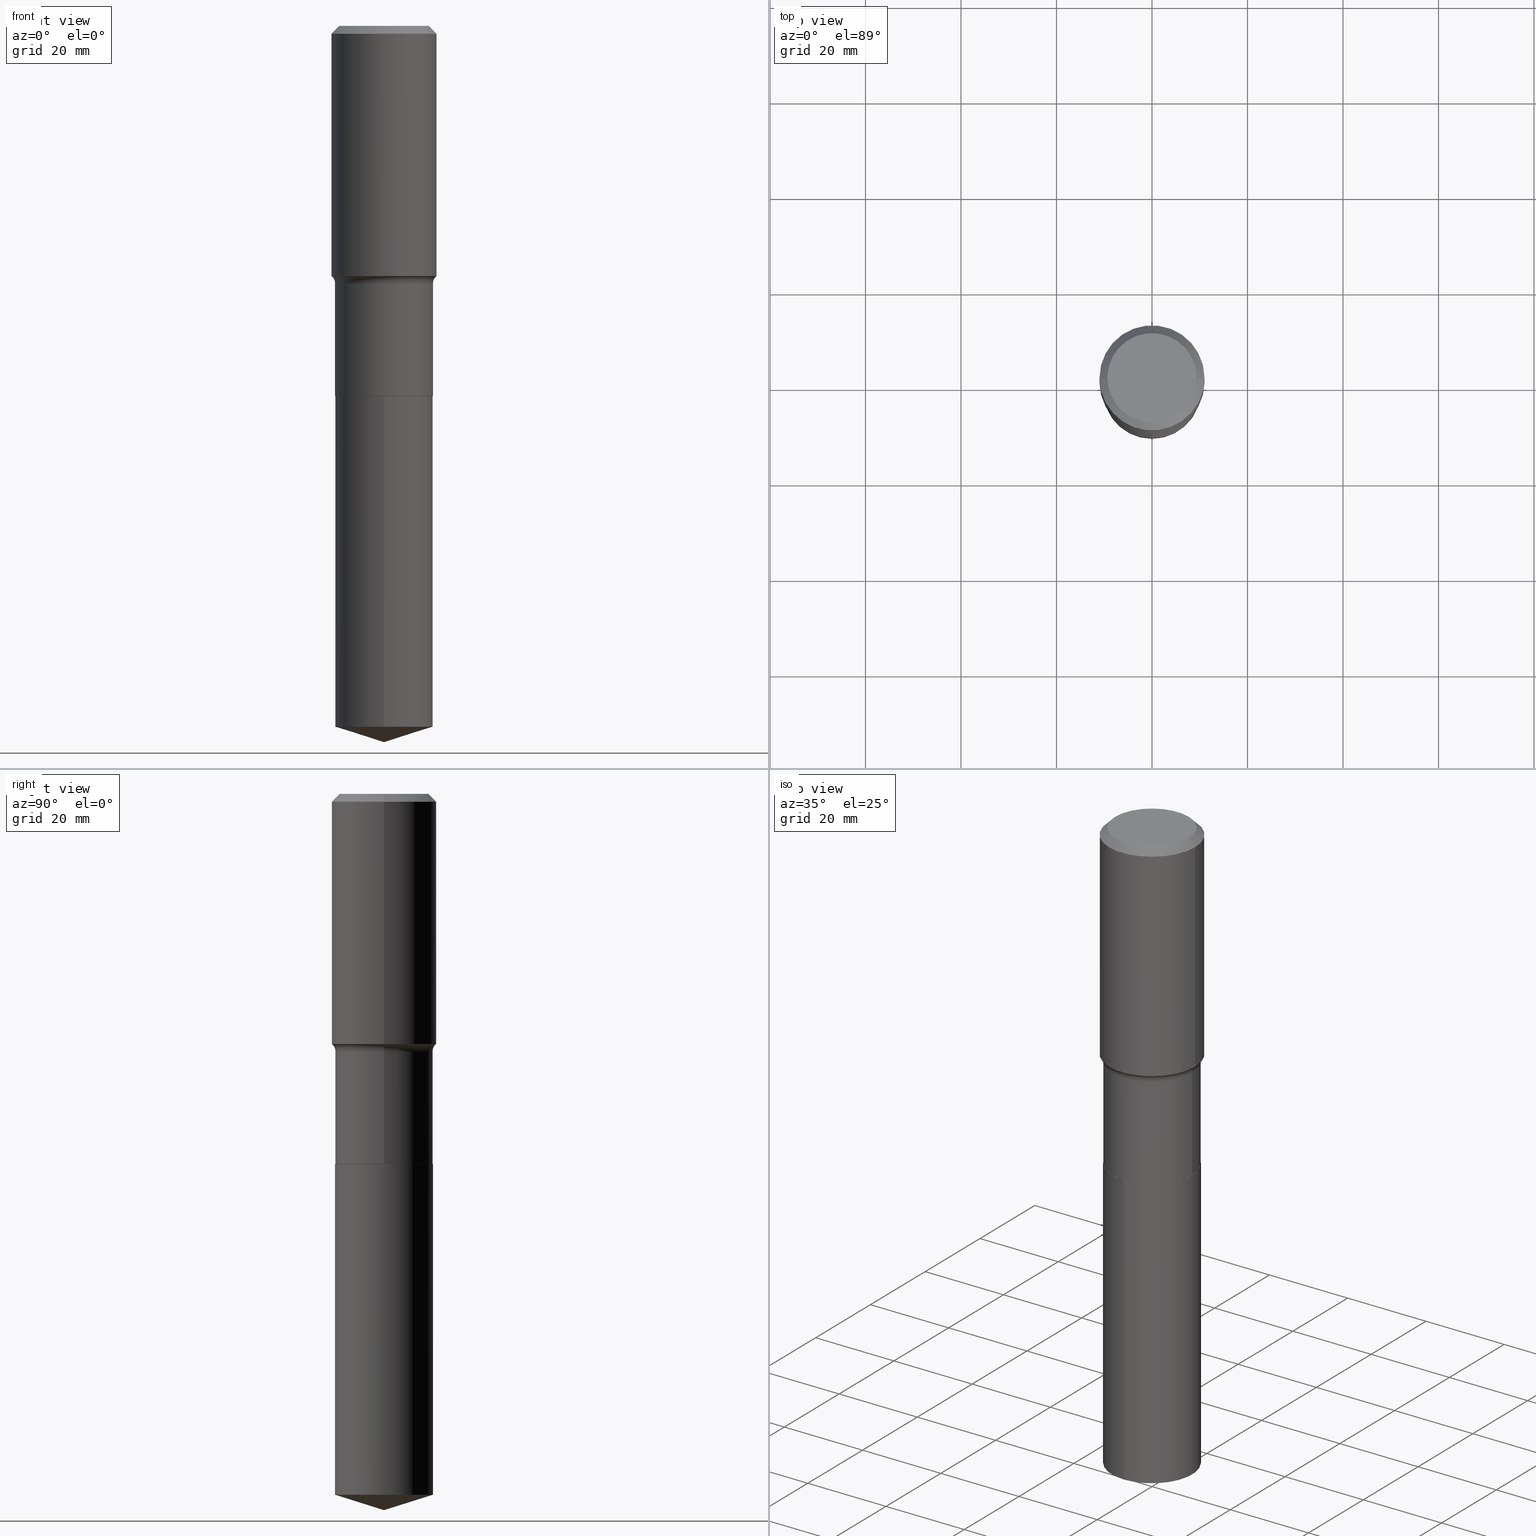
[diagram: canonical four-view strip — front | top / right | iso, engineering-drawing reading convention]
A machine part, canonical four-view strip (front | top / right | iso — engineering-drawing reading convention). The complete STEP part file that produces these views, byte-faithful:
ISO-10303-21;
HEADER;
FILE_DESCRIPTION (( 'STEP AP203' ),
    '1' );
FILE_NAME ('64513.STEP',
    '2024-04-19T15:43:19',
    ( '' ),
    ( '' ),
    'SwSTEP 2.0',
    'SolidWorks 2023',
    '' );
FILE_SCHEMA (( 'CONFIG_CONTROL_DESIGN' ));
ENDSEC;

DATA;
#1 = EDGE_LOOP ( 'NONE', ( #347, #416 ) ) ;
#2 = CYLINDRICAL_SURFACE ( 'NONE', #410, 0.4035499999999999088 ) ;
#3 = ORIENTED_EDGE ( 'NONE', *, *, #302, .T. ) ;
#4 = CARTESIAN_POINT ( 'NONE',  ( 0.4330500000000000460, -3.023971987572038133E-15, 2.111628352758430314E-29 ) ) ;
#5 = ORIENTED_EDGE ( 'NONE', *, *, #426, .T. ) ;
#6 = CYLINDRICAL_SURFACE ( 'NONE', #259, 0.4035499999999999088 ) ;
#7 = AXIS2_PLACEMENT_3D ( 'NONE', #59, #179, #167 ) ;
#8 = ADVANCED_FACE ( 'NONE', ( #249 ), #12, .T. ) ;
#9 = ORIENTED_EDGE ( 'NONE', *, *, #298, .F. ) ;
#10 = DIRECTION ( 'NONE',  ( -1.000000000000000000, 7.105427357601001859E-15, 0.000000000000000000 ) ) ;
#11 = PERSON_AND_ORGANIZATION ( #276, #54 ) ;
#12 = CYLINDRICAL_SURFACE ( 'NONE', #182, 0.4035500000000001308 ) ;
#13 = CYLINDRICAL_SURFACE ( 'NONE', #7, 0.4330500000000000460 ) ;
#14 = DIRECTION ( 'NONE',  ( -2.445468806185136597E-29, 3.491481338843145583E-15, 1.000000000000000000 ) ) ;
#15 = CARTESIAN_POINT ( 'NONE',  ( 0.3680924999999999336, -2.861517208123791872E-15, 3.893152174491335652E-17 ) ) ;
#16 = VECTOR ( 'NONE', #362, 39.37007874015748143 ) ;
#17 = VECTOR ( 'NONE', #295, 39.37007874015748143 ) ;
#18 = DATE_AND_TIME ( #85, #393 ) ;
#19 = DIRECTION ( 'NONE',  ( 2.445468806185136597E-29, -3.491481338843145583E-15, -1.000000000000000000 ) ) ;
#20 = LOCAL_TIME ( 11, 43, 19.00000000000000000, #318 ) ;
#21 = DIRECTION ( 'NONE',  ( 0.7071067811866441621, -2.468850131083269169E-15, 0.7071067811864508723 ) ) ;
#22 = DATE_AND_TIME ( #92, #191 ) ;
#23 = DIRECTION ( 'NONE',  ( -2.445468806185136597E-29, 3.491481338843145583E-15, 1.000000000000000000 ) ) ;
#24 = DIRECTION ( 'NONE',  ( 2.445468806185136597E-29, -3.491481338843145583E-15, -1.000000000000000000 ) ) ;
#25 = CARTESIAN_POINT ( 'NONE',  ( 0.4035500000000002419, -1.346943670898907832E-14, -3.050699999999999967 ) ) ;
#26 = AXIS2_PLACEMENT_3D ( 'NONE', #49, #14, #443 ) ;
#27 = CIRCLE ( 'NONE', #213, 0.07800000000000002764 ) ;
#28 = DIRECTION ( 'NONE',  ( 0.7071067811865450192, -7.319954787623246579E-15, -0.7071067811865500152 ) ) ;
#29 = APPLICATION_CONTEXT ( 'configuration controlled 3d designs of mechanical parts and assemblies' ) ;
#30 = AXIS2_PLACEMENT_3D ( 'NONE', #305, #309, #461 ) ;
#31 = EDGE_CURVE ( 'NONE', #463, #74, #333, .T. ) ;
#32 = EDGE_LOOP ( 'NONE', ( #229, #379, #330, #278 ) ) ;
#33 = FACE_OUTER_BOUND ( 'NONE', #446, .T. ) ;
#34 = ORIENTED_EDGE ( 'NONE', *, *, #390, .F. ) ;
#35 = DIRECTION ( 'NONE',  ( -6.982962677686266711E-15, -1.000000000000000000, 4.061724188325010945E-15 ) ) ;
#36 = VECTOR ( 'NONE', #246, 39.37007874015748143 ) ;
#37 = ORIENTED_EDGE ( 'NONE', *, *, #163, .F. ) ;
#38 = CARTESIAN_POINT ( 'NONE',  ( 5.191730275531042941E-29, -7.412414882363994454E-15, -2.122999999999999332 ) ) ;
#39 = ORIENTED_EDGE ( 'NONE', *, *, #122, .T. ) ;
#40 = LINE ( 'NONE', #383, #375 ) ;
#41 = PRODUCT_DEFINITION_SHAPE ( 'NONE', 'NONE',  #395 ) ;
#42 = ORIENTED_EDGE ( 'NONE', *, *, #76, .T. ) ;
#43 = DIRECTION ( 'NONE',  ( -2.445468806185136877E-29, 3.491481338843145188E-15, 1.000000000000000000 ) ) ;
#44 = AXIS2_PLACEMENT_3D ( 'NONE', #287, #398, #257 ) ;
#45 = SECURITY_CLASSIFICATION ( '', '', #177 ) ;
#46 = ORIENTED_EDGE ( 'NONE', *, *, #128, .F. ) ;
#47 = CARTESIAN_POINT ( 'NONE',  ( 0.4030499999999999639, -1.346769096831965602E-14, -3.051200000000000134 ) ) ;
#48 = PERSON_AND_ORGANIZATION ( #276, #54 ) ;
#49 = CARTESIAN_POINT ( 'NONE',  ( 5.042341351879069705E-29, -7.199127091556149252E-15, -2.061911948795201344 ) ) ;
#50 = CARTESIAN_POINT ( 'NONE',  ( -0.4330499999999999905, -6.359571781029132743E-16, -0.06495750000000043156 ) ) ;
#51 = APPROVAL_ROLE ( '' ) ;
#52 = CARTESIAN_POINT ( 'NONE',  ( -0.4030499999999999639, -7.786716137423011070E-15, -3.051200000000000134 ) ) ;
#53 = CARTESIAN_POINT ( 'NONE',  ( 7.461614421432089568E-29, -1.065320786107820621E-14, -3.051200000000000134 ) ) ;
#54 = ORGANIZATION ( 'UNSPECIFIED', 'UNSPECIFIED', '' ) ;
#55 = APPROVAL_DATE_TIME ( #18, #147 ) ;
#56 = ORIENTED_EDGE ( 'NONE', *, *, #343, .T. ) ;
#57 = FACE_OUTER_BOUND ( 'NONE', #411, .T. ) ;
#58 = VERTEX_POINT ( 'NONE', #52 ) ;
#59 = CARTESIAN_POINT ( 'NONE',  ( 0.000000000000000000, 0.000000000000000000, 0.000000000000000000 ) ) ;
#60 = ADVANCED_FACE ( 'NONE', ( #216 ), #353, .T. ) ;
#61 = CARTESIAN_POINT ( 'NONE',  ( 5.191730275531042941E-29, -7.412414882363994454E-15, -2.122999999999999332 ) ) ;
#62 = CARTESIAN_POINT ( 'NONE',  ( 0.4330499999999999905, -3.197736557002866957E-15, -0.06495750000000043156 ) ) ;
#63 = AXIS2_PLACEMENT_3D ( 'NONE', #380, #344, #149 ) ;
#64 = AXIS2_PLACEMENT_3D ( 'NONE', #466, #23, #130 ) ;
#65 = VECTOR ( 'NONE', #320, 39.37007874015748143 ) ;
#66 = LOCAL_TIME ( 11, 43, 19.00000000000000000, #251 ) ;
#67 = VERTEX_POINT ( 'NONE', #365 ) ;
#68 = CARTESIAN_POINT ( 'NONE',  ( 7.461614421432089568E-29, -1.065320786107820621E-14, -3.051200000000000134 ) ) ;
#69 = ORIENTED_EDGE ( 'NONE', *, *, #311, .T. ) ;
#70 = CARTESIAN_POINT ( 'NONE',  ( -0.4035500000000001308, 2.867395210159885230E-15, -1.985036255672368073E-29 ) ) ;
#71 = ORIENTED_EDGE ( 'NONE', *, *, #141, .F. ) ;
#72 = DIRECTION ( 'NONE',  ( -6.982962677686266711E-15, -1.000000000000000000, 4.061724188325010945E-15 ) ) ;
#73 = CONICAL_SURFACE ( 'NONE', #290, 124.8659371009141097, 1.265363707695889461 ) ;
#74 = VERTEX_POINT ( 'NONE', #25 ) ;
#75 = CYLINDRICAL_SURFACE ( 'NONE', #63, 0.4330500000000000460 ) ;
#76 = EDGE_CURVE ( 'NONE', #67, #377, #137, .T. ) ;
#77 = APPROVAL_STATUS ( 'not_yet_approved' ) ;
#78 = EDGE_LOOP ( 'NONE', ( #151, #358, #451 ) ) ;
#79 = DIRECTION ( 'NONE',  ( -2.445468806185136597E-29, 3.491481338843145583E-15, 1.000000000000000000 ) ) ;
#80 = CALENDAR_DATE ( 2024, 19, 4 ) ;
#81 = ORIENTED_EDGE ( 'NONE', *, *, #311, .F. ) ;
#82 = CARTESIAN_POINT ( 'NONE',  ( -0.4815500000000002001, -3.990796338311230981E-15, -2.122999999999999332 ) ) ;
#83 = AXIS2_PLACEMENT_3D ( 'NONE', #386, #158, #112 ) ;
#84 = ADVANCED_FACE ( 'NONE', ( #166 ), #126, .T. ) ;
#85 = CALENDAR_DATE ( 2024, 19, 4 ) ;
#86 = ORIENTED_EDGE ( 'NONE', *, *, #31, .T. ) ;
#87 = CARTESIAN_POINT ( 'NONE',  ( 0.4035500000000000753, -1.023038947094428886E-14, -2.122999999999999332 ) ) ;
#88 = APPROVAL ( #129, 'UNSPECIFIED' ) ;
#89 = DATE_TIME_ROLE ( 'classification_date' ) ;
#90 = CARTESIAN_POINT ( 'NONE',  ( 1.588515399777720472E-30, -2.267978990679051181E-16, -0.06495750000000043156 ) ) ;
#91 = CARTESIAN_POINT ( 'NONE',  ( -0.4035500000000003529, -6.164543291226502771E-15, -3.050699999999999967 ) ) ;
#92 = CALENDAR_DATE ( 2024, 19, 4 ) ;
#93 = VERTEX_POINT ( 'NONE', #97 ) ;
#94 = CARTESIAN_POINT ( 'NONE',  ( -0.4330500000000000460, -4.122121774347035070E-15, -2.061911948795201344 ) ) ;
#95 = CIRCLE ( 'NONE', #150, 0.4030499999999999639 ) ;
#96 = VECTOR ( 'NONE', #21, 39.37007874015748143 ) ;
#97 = CARTESIAN_POINT ( 'NONE',  ( -0.3680924999999999336, 2.683775138970182009E-15, 3.893152174487599040E-17 ) ) ;
#98 = DIRECTION ( 'NONE',  ( 6.982962677686265922E-15, 1.000000000000000000, -3.502726787566277144E-15 ) ) ;
#99 = CARTESIAN_POINT ( 'NONE',  ( -9.520582200445749913E-46, 1.359286816650647833E-31, 3.893152174489436223E-17 ) ) ;
#100 = AXIS2_PLACEMENT_3D ( 'NONE', #197, #350, #313 ) ;
#101 = APPLICATION_PROTOCOL_DEFINITION ( 'international standard', 'config_control_design', 1994, #29 ) ;
#102 = EDGE_CURVE ( 'NONE', #74, #463, #470, .T. ) ;
#103 = ADVANCED_BREP_SHAPE_REPRESENTATION ( '64513', ( #336, #171, #454 ), #279 ) ;
#104 = LENGTH_MEASURE_WITH_UNIT ( LENGTH_MEASURE( 0.02539999999999999897 ), #484 );
#105 = AXIS2_PLACEMENT_3D ( 'NONE', #205, #169, #434 ) ;
#106 = VERTEX_POINT ( 'NONE', #286 ) ;
#107 = AXIS2_PLACEMENT_3D ( 'NONE', #273, #114, #242 ) ;
#108 = CIRCLE ( 'NONE', #83, 0.07800000000000002764 ) ;
#109 = EDGE_LOOP ( 'NONE', ( #354, #42, #322, #135 ) ) ;
#110 = CARTESIAN_POINT ( 'NONE',  ( 7.461614421432089568E-29, -1.065320786107820621E-14, -3.051200000000000134 ) ) ;
#111 = EDGE_LOOP ( 'NONE', ( #190, #37 ) ) ;
#112 = DIRECTION ( 'NONE',  ( 1.000000000000000000, -6.982962677686255667E-15, 0.000000000000000000 ) ) ;
#113 = ORIENTED_EDGE ( 'NONE', *, *, #142, .T. ) ;
#114 = DIRECTION ( 'NONE',  ( -2.445468806185136597E-29, 3.491481338843145583E-15, 1.000000000000000000 ) ) ;
#115 = ORIENTED_EDGE ( 'NONE', *, *, #181, .F. ) ;
#116 = DIRECTION ( 'NONE',  ( 1.000000000000000000, -6.982962677686265922E-15, 4.876176775795935793E-29 ) ) ;
#117 = EDGE_CURVE ( 'NONE', #67, #120, #427, .T. ) ;
#118 = DESIGN_CONTEXT ( 'detailed design', #156, 'design' ) ;
#119 = PERSON_AND_ORGANIZATION_ROLE ( 'creator' ) ;
#120 = VERTEX_POINT ( 'NONE', #468 ) ;
#121 = FACE_OUTER_BOUND ( 'NONE', #261, .T. ) ;
#122 = EDGE_CURVE ( 'NONE', #106, #67, #124, .T. ) ;
#123 = DATE_TIME_ROLE ( 'creation_date' ) ;
#124 = LINE ( 'NONE', #397, #373 ) ;
#125 = DIRECTION ( 'NONE',  ( -6.982962677686266711E-15, -1.000000000000000000, 4.061724188325010945E-15 ) ) ;
#126 = CONICAL_SURFACE ( 'NONE', #201, 0.4330499999999999905, 0.7853981633974447263 ) ;
#127 = CIRCLE ( 'NONE', #107, 0.3680924999999999336 ) ;
#128 = EDGE_CURVE ( 'NONE', #456, #382, #453, .T. ) ;
#129 = APPROVAL_STATUS ( 'not_yet_approved' ) ;
#130 = DIRECTION ( 'NONE',  ( 1.000000000000000000, -6.982962677686265922E-15, 0.000000000000000000 ) ) ;
#131 = LINE ( 'NONE', #328, #36 ) ;
#132 = ORIENTED_EDGE ( 'NONE', *, *, #31, .F. ) ;
#133 = DIRECTION ( 'NONE',  ( -2.445468806185136877E-29, 3.491481338843145188E-15, 1.000000000000000000 ) ) ;
#134 = CALENDAR_DATE ( 2024, 19, 4 ) ;
#135 = ORIENTED_EDGE ( 'NONE', *, *, #343, .F. ) ;
#136 = LINE ( 'NONE', #217, #17 ) ;
#137 = CIRCLE ( 'NONE', #105, 0.4035499999999999088 ) ;
#138 = AXIS2_PLACEMENT_3D ( 'NONE', #389, #195, #116 ) ;
#139 = DIRECTION ( 'NONE',  ( 1.000000000000000000, -6.982962677686266711E-15, 0.000000000000000000 ) ) ;
#140 = APPROVAL_PERSON_ORGANIZATION ( #357, #143, #285 ) ;
#141 = EDGE_CURVE ( 'NONE', #414, #93, #258, .T. ) ;
#142 = EDGE_CURVE ( 'NONE', #407, #458, #310, .T. ) ;
#143 = APPROVAL ( #361, 'UNSPECIFIED' ) ;
#144 = TOROIDAL_SURFACE ( 'NONE', #420, 0.4815500000000002001, 0.07800000000000002764 ) ;
#145 = AXIS2_PLACEMENT_3D ( 'NONE', #110, #425, #192 ) ;
#146 =( NAMED_UNIT ( * ) PLANE_ANGLE_UNIT ( ) SI_UNIT ( $, .RADIAN. ) );
#147 = APPROVAL ( #77, 'UNSPECIFIED' ) ;
#148 = CARTESIAN_POINT ( 'NONE',  ( -0.4030499999999999639, -7.789365364597123060E-15, -3.051200000000000134 ) ) ;
#149 = DIRECTION ( 'NONE',  ( 1.000000000000000000, -6.982962677686266711E-15, 4.876176775795935793E-29 ) ) ;
#150 = AXIS2_PLACEMENT_3D ( 'NONE', #482, #372, #139 ) ;
#151 = ORIENTED_EDGE ( 'NONE', *, *, #122, .F. ) ;
#152 = AXIS2_PLACEMENT_3D ( 'NONE', #189, #490, #153 ) ;
#153 = DIRECTION ( 'NONE',  ( 1.000000000000000000, -6.982962677686265922E-15, 0.000000000000000000 ) ) ;
#154 = ORIENTED_EDGE ( 'NONE', *, *, #488, .T. ) ;
#155 = DIRECTION ( 'NONE',  ( -6.659769872151627355E-15, -0.9537169507482260444, 0.3007057995042759502 ) ) ;
#156 = APPLICATION_CONTEXT ( 'configuration controlled 3d designs of mechanical parts and assemblies' ) ;
#157 = ORIENTED_EDGE ( 'NONE', *, *, #219, .T. ) ;
#158 = DIRECTION ( 'NONE',  ( -6.982962677686266711E-15, -1.000000000000000000, 3.491481338843145583E-15 ) ) ;
#159 = ORIENTED_EDGE ( 'NONE', *, *, #117, .T. ) ;
#160 = DIRECTION ( 'NONE',  ( 2.438088387897960049E-29, -3.491481338843145188E-15, -1.000000000000000000 ) ) ;
#161 = CARTESIAN_POINT ( 'NONE',  ( 0.000000000000000000, 0.000000000000000000, 0.000000000000000000 ) ) ;
#162 = ORIENTED_EDGE ( 'NONE', *, *, #339, .F. ) ;
#163 = EDGE_CURVE ( 'NONE', #58, #306, #95, .T. ) ;
#164 = CARTESIAN_POINT ( 'NONE',  ( -0.4330500000000000460, 3.077005317209114182E-15, -2.130144840834887405E-29 ) ) ;
#165 = COORDINATED_UNIVERSAL_TIME_OFFSET ( 5, 0, .BEHIND. ) ;
#166 = FACE_OUTER_BOUND ( 'NONE', #473, .T. ) ;
#167 = DIRECTION ( 'NONE',  ( 1.000000000000000000, -6.982962677686266711E-15, 4.876176775795935793E-29 ) ) ;
#168 = DIRECTION ( 'NONE',  ( 0.000000000000000000, 0.000000000000000000, 1.000000000000000000 ) ) ;
#169 = DIRECTION ( 'NONE',  ( -2.437616151312390416E-29, 3.502726787566277144E-15, 1.000000000000000000 ) ) ;
#170 = LINE ( 'NONE', #47, #96 ) ;
#171 = MANIFOLD_SOLID_BREP ( 'Body-Move/Copy2[2]', #412 ) ;
#172 = CLOSED_SHELL ( 'NONE', ( #263, #445, #450, #268, #444 ) ) ;
#173 = COORDINATED_UNIVERSAL_TIME_OFFSET ( 5, 0, .BEHIND. ) ;
#174 = EDGE_LOOP ( 'NONE', ( #418, #154, #196, #34 ) ) ;
#175 = CARTESIAN_POINT ( 'NONE',  ( 0.4330500000000000460, -1.022309907912818896E-14, -2.061911948795201344 ) ) ;
#176 = ADVANCED_FACE ( 'NONE', ( #180 ), #300, .F. ) ;
#177 = SECURITY_CLASSIFICATION_LEVEL ( 'unclassified' ) ;
#178 = DIRECTION ( 'NONE',  ( -2.445468806185136597E-29, 3.491481338843145583E-15, 1.000000000000000000 ) ) ;
#179 = DIRECTION ( 'NONE',  ( -2.445468806185136597E-29, 3.491481338843145583E-15, 1.000000000000000000 ) ) ;
#180 = FACE_OUTER_BOUND ( 'NONE', #1, .T. ) ;
#181 = EDGE_CURVE ( 'NONE', #106, #377, #40, .T. ) ;
#182 = AXIS2_PLACEMENT_3D ( 'NONE', #403, #477, #431 ) ;
#183 = CIRCLE ( 'NONE', #44, 0.4035499999999999088 ) ;
#184 = ADVANCED_FACE ( 'NONE', ( #232 ), #144, .F. ) ;
#185 = CARTESIAN_POINT ( 'NONE',  ( 1.588515399777720472E-30, -2.267978990679051181E-16, -0.06495750000000043156 ) ) ;
#186 = AXIS2_PLACEMENT_3D ( 'NONE', #61, #218, #332 ) ;
#187 = DIMENSIONAL_EXPONENTS ( 1.000000000000000000, 0.000000000000000000, 0.000000000000000000, 0.000000000000000000, 0.000000000000000000, 0.000000000000000000, 0.000000000000000000 ) ;
#188 = EDGE_LOOP ( 'NONE', ( #211, #388, #199, #132 ) ) ;
#189 = CARTESIAN_POINT ( 'NONE',  ( 5.191730275531042941E-29, -7.412414882363994454E-15, -2.122999999999999332 ) ) ;
#190 = ORIENTED_EDGE ( 'NONE', *, *, #253, .F. ) ;
#191 = LOCAL_TIME ( 11, 43, 19.00000000000000000, #165 ) ;
#192 = DIRECTION ( 'NONE',  ( 1.000000000000000000, -6.982962677686266711E-15, 0.000000000000000000 ) ) ;
#193 = EDGE_CURVE ( 'NONE', #382, #456, #487, .T. ) ;
#194 = ORIENTED_EDGE ( 'NONE', *, *, #374, .T. ) ;
#195 = DIRECTION ( 'NONE',  ( -2.445468806185136597E-29, 3.491481338843145583E-15, 1.000000000000000000 ) ) ;
#196 = ORIENTED_EDGE ( 'NONE', *, *, #102, .F. ) ;
#197 = CARTESIAN_POINT ( 'NONE',  ( 7.461614421432089568E-29, -1.065320786107820621E-14, -3.051200000000000134 ) ) ;
#198 = APPROVAL_ROLE ( '' ) ;
#199 = ORIENTED_EDGE ( 'NONE', *, *, #390, .T. ) ;
#200 = DIRECTION ( 'NONE',  ( -2.437616151312390416E-29, 3.502726787566277144E-15, 1.000000000000000000 ) ) ;
#201 = AXIS2_PLACEMENT_3D ( 'NONE', #90, #19, #256 ) ;
#202 = CIRCLE ( 'NONE', #100, 0.4030499999999999639 ) ;
#203 = ADVANCED_FACE ( 'NONE', ( #271 ), #415, .T. ) ;
#204 = APPLICATION_PROTOCOL_DEFINITION ( 'international standard', 'config_control_design', 1994, #156 ) ;
#205 = CARTESIAN_POINT ( 'NONE',  ( 1.410914278417686230E-28, -2.020535808569685938E-14, -5.778261173747885948 ) ) ;
#206 = DIRECTION ( 'NONE',  ( -2.437616151312390416E-29, 3.502726787566277144E-15, 1.000000000000000000 ) ) ;
#207 = PERSON_AND_ORGANIZATION_ROLE ( 'design_owner' ) ;
#208 = ORIENTED_EDGE ( 'NONE', *, *, #426, .F. ) ;
#209 = FACE_OUTER_BOUND ( 'NONE', #327, .T. ) ;
#210 = PERSON_AND_ORGANIZATION ( #276, #54 ) ;
#211 = ORIENTED_EDGE ( 'NONE', *, *, #488, .F. ) ;
#212 = DIRECTION ( 'NONE',  ( -2.438088387897960049E-29, 3.491481338843145188E-15, 1.000000000000000000 ) ) ;
#213 = AXIS2_PLACEMENT_3D ( 'NONE', #82, #478, #10 ) ;
#214 = EDGE_LOOP ( 'NONE', ( #282, #159, #308, #162 ) ) ;
#215 = CARTESIAN_POINT ( 'NONE',  ( -8.154983761332539884E-28, 1.172515885009145802E-13, 33.46457874015748502 ) ) ;
#216 = FACE_OUTER_BOUND ( 'NONE', #188, .T. ) ;
#217 = CARTESIAN_POINT ( 'NONE',  ( 0.4035500000000001308, -2.817974588580293613E-15, 1.967781137872450427E-29 ) ) ;
#218 = DIRECTION ( 'NONE',  ( -2.445468806185136597E-29, 3.491481338843145583E-15, 1.000000000000000000 ) ) ;
#219 = EDGE_CURVE ( 'NONE', #241, #120, #324, .T. ) ;
#220 =( CONVERSION_BASED_UNIT ( 'INCH', #104 ) LENGTH_UNIT ( ) NAMED_UNIT ( #187 ) );
#221 = AXIS2_PLACEMENT_3D ( 'NONE', #297, #24, #428 ) ;
#222 = EDGE_CURVE ( 'NONE', #463, #458, #230, .T. ) ;
#223 = DIRECTION ( 'NONE',  ( -2.445468806185136597E-29, 3.491481338843145583E-15, 1.000000000000000000 ) ) ;
#224 = CC_DESIGN_PERSON_AND_ORGANIZATION_ASSIGNMENT ( #255, #472, ( #45 ) ) ;
#225 = ADVANCED_FACE ( 'NONE', ( #33 ), #75, .T. ) ;
#226 = AXIS2_PLACEMENT_3D ( 'NONE', #215, #206, #360 ) ;
#227 = CC_DESIGN_PERSON_AND_ORGANIZATION_ASSIGNMENT ( #465, #326, ( #236 ) ) ;
#228 = ADVANCED_FACE ( 'NONE', ( #348 ), #492, .T. ) ;
#229 = ORIENTED_EDGE ( 'NONE', *, *, #102, .T. ) ;
#230 = LINE ( 'NONE', #70, #471 ) ;
#231 = EDGE_LOOP ( 'NONE', ( #233, #400, #252, #81 ) ) ;
#232 = FACE_OUTER_BOUND ( 'NONE', #385, .T. ) ;
#233 = ORIENTED_EDGE ( 'NONE', *, *, #384, .F. ) ;
#234 = AXIS2_PLACEMENT_3D ( 'NONE', #331, #317, #432 ) ;
#235 = CC_DESIGN_DATE_AND_TIME_ASSIGNMENT ( #22, #123, ( #395 ) ) ;
#236 = PRODUCT_DEFINITION_FORMATION_WITH_SPECIFIED_SOURCE ( 'ANY', '', #314, .NOT_KNOWN. ) ;
#237 = CARTESIAN_POINT ( 'NONE',  ( -4.760291100222874956E-46, 6.796434083253239167E-32, 1.946576087244718112E-17 ) ) ;
#238 = ORIENTED_EDGE ( 'NONE', *, *, #384, .T. ) ;
#239 = DIRECTION ( 'NONE',  ( -2.437616151312390416E-29, 3.502726787566277144E-15, 1.000000000000000000 ) ) ;
#240 = PERSON_AND_ORGANIZATION_ROLE ( 'design_supplier' ) ;
#241 = VERTEX_POINT ( 'NONE', #378 ) ;
#242 = DIRECTION ( 'NONE',  ( 1.000000000000000000, -6.982962677686267499E-15, 4.875824421662870534E-29 ) ) ;
#243 = EDGE_CURVE ( 'NONE', #93, #414, #127, .T. ) ;
#244 = ORIENTED_EDGE ( 'NONE', *, *, #298, .T. ) ;
#245 = AXIS2_PLACEMENT_3D ( 'NONE', #99, #264, #409 ) ;
#246 = DIRECTION ( 'NONE',  ( -0.7071067811865450192, 2.468850131082230634E-15, -0.7071067811865500152 ) ) ;
#247 = CIRCLE ( 'NONE', #376, 0.4330499999999999905 ) ;
#248 = CC_DESIGN_DATE_AND_TIME_ASSIGNMENT ( #476, #89, ( #45 ) ) ;
#249 = FACE_OUTER_BOUND ( 'NONE', #32, .T. ) ;
#250 = CARTESIAN_POINT ( 'NONE',  ( -2.817974588580150434E-15, -0.4035500000000201148, -5.778261173747885060 ) ) ;
#251 = COORDINATED_UNIVERSAL_TIME_OFFSET ( 5, 0, .BEHIND. ) ;
#252 = ORIENTED_EDGE ( 'NONE', *, *, #284, .T. ) ;
#253 = EDGE_CURVE ( 'NONE', #306, #58, #202, .T. ) ;
#254 = FACE_OUTER_BOUND ( 'NONE', #111, .T. ) ;
#255 = PERSON_AND_ORGANIZATION ( #276, #54 ) ;
#256 = DIRECTION ( 'NONE',  ( -1.000000000000000000, 6.982962677686266711E-15, 0.000000000000000000 ) ) ;
#257 = DIRECTION ( 'NONE',  ( -6.982962677686266711E-15, -1.000000000000000000, 2.707816125550007428E-15 ) ) ;
#258 = CIRCLE ( 'NONE', #245, 0.3680924999999999336 ) ;
#259 = AXIS2_PLACEMENT_3D ( 'NONE', #307, #419, #35 ) ;
#260 = LOCAL_TIME ( 11, 43, 19.00000000000000000, #291 ) ;
#261 = EDGE_LOOP ( 'NONE', ( #460, #422, #5, #69 ) ) ;
#262 = FACE_OUTER_BOUND ( 'NONE', #78, .T. ) ;
#263 = ADVANCED_FACE ( 'NONE', ( #281 ), #6, .T. ) ;
#264 = DIRECTION ( 'NONE',  ( -2.445468806185136597E-29, 3.491481338843145583E-15, 1.000000000000000000 ) ) ;
#265 = CC_DESIGN_PERSON_AND_ORGANIZATION_ASSIGNMENT ( #329, #207, ( #314 ) ) ;
#266 = AXIS2_PLACEMENT_3D ( 'NONE', #296, #316, #439 ) ;
#267 =( NAMED_UNIT ( * ) SI_UNIT ( $, .STERADIAN. ) SOLID_ANGLE_UNIT ( ) );
#268 = ADVANCED_FACE ( 'NONE', ( #464 ), #2, .T. ) ;
#269 = VECTOR ( 'NONE', #133, 39.37007874015748143 ) ;
#270 = ORIENTED_EDGE ( 'NONE', *, *, #302, .F. ) ;
#271 = FACE_OUTER_BOUND ( 'NONE', #304, .T. ) ;
#272 = ORIENTED_EDGE ( 'NONE', *, *, #485, .F. ) ;
#273 = CARTESIAN_POINT ( 'NONE',  ( -9.520582200445749913E-46, 1.359286816650647833E-31, 3.893152174489436223E-17 ) ) ;
#274 = ORIENTED_EDGE ( 'NONE', *, *, #193, .F. ) ;
#275 = CARTESIAN_POINT ( 'NONE',  ( 0.4030499999999999639, -1.346769096831965602E-14, -3.051200000000000134 ) ) ;
#276 = PERSON ( 'UNSPECIFIED', 'UNSPECIFIED', 'UNSPECIFIED', ('UNSPECIFIED'), ('UNSPECIFIED'), ('UNSPECIFIED') ) ;
#277 = AXIS2_PLACEMENT_3D ( 'NONE', #423, #352, #301 ) ;
#278 = ORIENTED_EDGE ( 'NONE', *, *, #374, .F. ) ;
#279 =( GEOMETRIC_REPRESENTATION_CONTEXT ( 3 ) GLOBAL_UNCERTAINTY_ASSIGNED_CONTEXT ( ( #315 ) ) GLOBAL_UNIT_ASSIGNED_CONTEXT ( ( #220, #146, #267 ) ) REPRESENTATION_CONTEXT ( 'NONE', 'WORKASPACE' ) );
#280 = CC_DESIGN_APPROVAL ( #88, ( #395 ) ) ;
#281 = FACE_OUTER_BOUND ( 'NONE', #214, .T. ) ;
#282 = ORIENTED_EDGE ( 'NONE', *, *, #429, .T. ) ;
#283 = CARTESIAN_POINT ( 'NONE',  ( 7.461614421432089568E-29, -1.065320786107820621E-14, -3.051200000000000134 ) ) ;
#284 = EDGE_CURVE ( 'NONE', #456, #351, #417, .T. ) ;
#285 = APPROVAL_ROLE ( '' ) ;
#286 = CARTESIAN_POINT ( 'NONE',  ( 1.439534218157531941E-28, -2.068535304397264534E-14, -5.905499999999999972 ) ) ;
#287 = CARTESIAN_POINT ( 'NONE',  ( 1.410914278417686230E-28, -2.020535808569685938E-14, -5.778261173747885948 ) ) ;
#288 = DIRECTION ( 'NONE',  ( 6.776566513254253404E-15, 0.9537169507482281539, 0.3007057995042693443 ) ) ;
#289 = CARTESIAN_POINT ( 'NONE',  ( 0.4330499999999999905, -3.250769886639943005E-15, -0.06495750000000043156 ) ) ;
#290 = AXIS2_PLACEMENT_3D ( 'NONE', #370, #363, #293 ) ;
#291 = COORDINATED_UNIVERSAL_TIME_OFFSET ( 5, 0, .BEHIND. ) ;
#292 = DIRECTION ( 'NONE',  ( 1.000000000000000000, -6.982962677686266711E-15, 0.000000000000000000 ) ) ;
#293 = DIRECTION ( 'NONE',  ( -6.982962677686265922E-15, -1.000000000000000000, 3.500519750498731253E-15 ) ) ;
#294 = ORIENTED_EDGE ( 'NONE', *, *, #284, .F. ) ;
#295 = DIRECTION ( 'NONE',  ( -2.445468806185136877E-29, 3.491481338843145188E-15, 1.000000000000000000 ) ) ;
#296 = CARTESIAN_POINT ( 'NONE',  ( 7.460391687028996766E-29, -1.065146212040878392E-14, -3.050699999999999967 ) ) ;
#297 = CARTESIAN_POINT ( 'NONE',  ( 1.588515399777720472E-30, -2.267978990679051181E-16, -0.06495750000000043156 ) ) ;
#298 = EDGE_CURVE ( 'NONE', #458, #407, #299, .T. ) ;
#299 = CIRCLE ( 'NONE', #152, 0.4035500000000000753 ) ;
#300 = PLANE ( 'NONE',  #447 ) ;
#301 = DIRECTION ( 'NONE',  ( 1.000000000000000000, -6.982962677686268288E-15, 0.000000000000000000 ) ) ;
#302 = EDGE_CURVE ( 'NONE', #456, #407, #108, .T. ) ;
#303 = CC_DESIGN_APPROVAL ( #143, ( #236 ) ) ;
#304 = EDGE_LOOP ( 'NONE', ( #371, #86, #194, #9 ) ) ;
#305 = CARTESIAN_POINT ( 'NONE',  ( 1.588515399777720472E-30, -2.267978990679051181E-16, -0.06495750000000043156 ) ) ;
#306 = VERTEX_POINT ( 'NONE', #275 ) ;
#307 = CARTESIAN_POINT ( 'NONE',  ( 7.461614421432089568E-29, -1.065320786107820621E-14, -3.051200000000000134 ) ) ;
#308 = ORIENTED_EDGE ( 'NONE', *, *, #219, .F. ) ;
#309 = DIRECTION ( 'NONE',  ( -2.445468806185136597E-29, 3.491481338843145583E-15, 1.000000000000000000 ) ) ;
#310 = CIRCLE ( 'NONE', #186, 0.4035500000000000753 ) ;
#311 = EDGE_CURVE ( 'NONE', #392, #351, #381, .T. ) ;
#312 = ORIENTED_EDGE ( 'NONE', *, *, #406, .T. ) ;
#313 = DIRECTION ( 'NONE',  ( 1.000000000000000000, -6.982962677686266711E-15, 0.000000000000000000 ) ) ;
#314 = PRODUCT ( '64513', '64513', '', ( #396 ) ) ;
#315 = UNCERTAINTY_MEASURE_WITH_UNIT (LENGTH_MEASURE( 1.000000000000000082E-05 ), #220, 'distance_accuracy_value', 'NONE');
#316 = DIRECTION ( 'NONE',  ( -2.445468806185136597E-29, 3.491481338843145583E-15, 1.000000000000000000 ) ) ;
#317 = DIRECTION ( 'NONE',  ( -2.445468806185136597E-29, 3.491481338843145583E-15, 1.000000000000000000 ) ) ;
#318 = COORDINATED_UNIVERSAL_TIME_OFFSET ( 5, 0, .BEHIND. ) ;
#319 = CARTESIAN_POINT ( 'NONE',  ( 2.867395210159957805E-15, 0.4035499999999892506, -3.051200000000001467 ) ) ;
#320 = DIRECTION ( 'NONE',  ( -2.437616151312390416E-29, 3.502726787566277144E-15, 1.000000000000000000 ) ) ;
#321 = DATE_AND_TIME ( #80, #20 ) ;
#322 = ORIENTED_EDGE ( 'NONE', *, *, #339, .T. ) ;
#323 = DIRECTION ( 'NONE',  ( -2.437616151312390416E-29, 3.502726787566277144E-15, 1.000000000000000000 ) ) ;
#324 = CIRCLE ( 'NONE', #462, 0.4035499999999999088 ) ;
#325 = CC_DESIGN_PERSON_AND_ORGANIZATION_ASSIGNMENT ( #48, #119, ( #395 ) ) ;
#326 = PERSON_AND_ORGANIZATION_ROLE ( 'creator' ) ;
#327 = EDGE_LOOP ( 'NONE', ( #157, #56 ) ) ;
#328 = CARTESIAN_POINT ( 'NONE',  ( -0.4330499999999999905, 2.797174088504132473E-15, -0.06495750000000043156 ) ) ;
#329 = PERSON_AND_ORGANIZATION ( #276, #54 ) ;
#330 = ORIENTED_EDGE ( 'NONE', *, *, #142, .F. ) ;
#331 = CARTESIAN_POINT ( 'NONE',  ( 5.191730275531042941E-29, -7.412414882363994454E-15, -2.122999999999999332 ) ) ;
#332 = DIRECTION ( 'NONE',  ( 1.000000000000000000, -6.982962677686265922E-15, 0.000000000000000000 ) ) ;
#333 = CIRCLE ( 'NONE', #64, 0.4035500000000002419 ) ;
#334 = AXIS2_PLACEMENT_3D ( 'NONE', #474, #394, #98 ) ;
#335 = CC_DESIGN_SECURITY_CLASSIFICATION ( #45, ( #236 ) ) ;
#336 = MANIFOLD_SOLID_BREP ( 'Body-Move/Copy2[1]', #172 ) ;
#337 = LINE ( 'NONE', #148, #368 ) ;
#338 = APPROVAL_PERSON_ORGANIZATION ( #11, #88, #51 ) ;
#339 = EDGE_CURVE ( 'NONE', #377, #241, #467, .T. ) ;
#340 = DIRECTION ( 'NONE',  ( 1.000000000000000000, -6.982962677686266711E-15, 0.000000000000000000 ) ) ;
#341 = ADVANCED_FACE ( 'NONE', ( #121 ), #355, .T. ) ;
#342 = ORIENTED_EDGE ( 'NONE', *, *, #406, .F. ) ;
#343 = EDGE_CURVE ( 'NONE', #120, #241, #483, .T. ) ;
#344 = DIRECTION ( 'NONE',  ( -2.445468806185136597E-29, 3.491481338843145583E-15, 1.000000000000000000 ) ) ;
#345 = VECTOR ( 'NONE', #28, 39.37007874015748143 ) ;
#346 = CC_DESIGN_APPROVAL ( #147, ( #45 ) ) ;
#347 = ORIENTED_EDGE ( 'NONE', *, *, #243, .T. ) ;
#348 = FACE_OUTER_BOUND ( 'NONE', #174, .T. ) ;
#349 = ORIENTED_EDGE ( 'NONE', *, *, #485, .T. ) ;
#350 = DIRECTION ( 'NONE',  ( -2.445468806185136597E-29, 3.491481338843145583E-15, 1.000000000000000000 ) ) ;
#351 = VERTEX_POINT ( 'NONE', #289 ) ;
#352 = DIRECTION ( 'NONE',  ( -2.445468806185136597E-29, 3.491481338843145583E-15, 1.000000000000000000 ) ) ;
#353 = CONICAL_SURFACE ( 'NONE', #367, 0.4030499999999999639, 0.7853981633975849475 ) ;
#354 = ORIENTED_EDGE ( 'NONE', *, *, #117, .F. ) ;
#355 = CONICAL_SURFACE ( 'NONE', #221, 0.4330499999999999905, 0.7853981633974447263 ) ;
#356 = DIRECTION ( 'NONE',  ( -2.445468806185136877E-29, 3.491481338843145188E-15, 1.000000000000000000 ) ) ;
#357 = PERSON_AND_ORGANIZATION ( #276, #54 ) ;
#358 = ORIENTED_EDGE ( 'NONE', *, *, #181, .T. ) ;
#359 = ADVANCED_FACE ( 'NONE', ( #57 ), #421, .F. ) ;
#360 = DIRECTION ( 'NONE',  ( -6.982962677686265922E-15, -1.000000000000000000, 3.500519750498731253E-15 ) ) ;
#361 = APPROVAL_STATUS ( 'not_yet_approved' ) ;
#362 = DIRECTION ( 'NONE',  ( -2.437616151312390416E-29, 3.502726787566277144E-15, 1.000000000000000000 ) ) ;
#363 = DIRECTION ( 'NONE',  ( -2.437616151312390416E-29, 3.502726787566277144E-15, 1.000000000000000000 ) ) ;
#364 = PERSON_AND_ORGANIZATION ( #276, #54 ) ;
#365 = CARTESIAN_POINT ( 'NONE',  ( 2.867395210160024464E-15, 0.4035499999999797027, -5.778261173747886836 ) ) ;
#366 = PRODUCT_RELATED_PRODUCT_CATEGORY ( 'detail', '', ( #314 ) ) ;
#367 = AXIS2_PLACEMENT_3D ( 'NONE', #437, #178, #292 ) ;
#368 = VECTOR ( 'NONE', #486, 39.37007874015748143 ) ;
#369 = EDGE_LOOP ( 'NONE', ( #115, #39, #424 ) ) ;
#370 = CARTESIAN_POINT ( 'NONE',  ( -8.154983761332539884E-28, 1.172515885009145802E-13, 33.46457874015748502 ) ) ;
#371 = ORIENTED_EDGE ( 'NONE', *, *, #222, .F. ) ;
#372 = DIRECTION ( 'NONE',  ( -2.445468806185136597E-29, 3.491481338843145583E-15, 1.000000000000000000 ) ) ;
#373 = VECTOR ( 'NONE', #288, 39.37007874015748143 ) ;
#374 = EDGE_CURVE ( 'NONE', #74, #407, #136, .T. ) ;
#375 = VECTOR ( 'NONE', #155, 39.37007874015748143 ) ;
#376 = AXIS2_PLACEMENT_3D ( 'NONE', #185, #223, #340 ) ;
#377 = VERTEX_POINT ( 'NONE', #250 ) ;
#378 = CARTESIAN_POINT ( 'NONE',  ( -2.817974588580217488E-15, -0.4035500000000105669, -3.051199999999998358 ) ) ;
#379 = ORIENTED_EDGE ( 'NONE', *, *, #222, .T. ) ;
#380 = CARTESIAN_POINT ( 'NONE',  ( 0.000000000000000000, 0.000000000000000000, 0.000000000000000000 ) ) ;
#381 = CIRCLE ( 'NONE', #30, 0.4330499999999999905 ) ;
#382 = VERTEX_POINT ( 'NONE', #94 ) ;
#383 = CARTESIAN_POINT ( 'NONE',  ( 1.439534218157531941E-28, -2.068535304397264850E-14, -5.905499999999999972 ) ) ;
#384 = EDGE_CURVE ( 'NONE', #382, #392, #438, .T. ) ;
#385 = EDGE_LOOP ( 'NONE', ( #274, #312, #244, #270 ) ) ;
#386 = CARTESIAN_POINT ( 'NONE',  ( 0.4815500000000002001, -1.077506055980381848E-14, -2.122999999999999332 ) ) ;
#387 = DIRECTION ( 'NONE',  ( 1.000000000000000000, 0.000000000000000000, 0.000000000000000000 ) ) ;
#388 = ORIENTED_EDGE ( 'NONE', *, *, #163, .T. ) ;
#389 = CARTESIAN_POINT ( 'NONE',  ( 0.000000000000000000, 0.000000000000000000, 0.000000000000000000 ) ) ;
#390 = EDGE_CURVE ( 'NONE', #306, #74, #170, .T. ) ;
#391 = APPROVAL_DATE_TIME ( #321, #143 ) ;
#392 = VERTEX_POINT ( 'NONE', #50 ) ;
#393 = LOCAL_TIME ( 11, 43, 19.00000000000000000, #173 ) ;
#394 = DIRECTION ( 'NONE',  ( 2.437616151312390135E-29, -3.502726787566277144E-15, -1.000000000000000000 ) ) ;
#395 = PRODUCT_DEFINITION ( 'UNKNOWN', '', #236, #118 ) ;
#396 = MECHANICAL_CONTEXT ( 'NONE', #29, 'mechanical' ) ;
#397 = CARTESIAN_POINT ( 'NONE',  ( 1.444368242486610549E-28, -2.061672881768460830E-14, -5.905499999999999972 ) ) ;
#398 = DIRECTION ( 'NONE',  ( -2.437616151312390416E-29, 3.502726787566277144E-15, 1.000000000000000000 ) ) ;
#399 = APPROVAL_DATE_TIME ( #436, #88 ) ;
#400 = ORIENTED_EDGE ( 'NONE', *, *, #193, .T. ) ;
#401 = PLANE ( 'NONE',  #405 ) ;
#402 = SHAPE_DEFINITION_REPRESENTATION ( #41, #103 ) ;
#403 = CARTESIAN_POINT ( 'NONE',  ( 0.000000000000000000, 0.000000000000000000, 0.000000000000000000 ) ) ;
#404 = FACE_OUTER_BOUND ( 'NONE', #369, .T. ) ;
#405 = AXIS2_PLACEMENT_3D ( 'NONE', #53, #212, #448 ) ;
#406 = EDGE_CURVE ( 'NONE', #382, #458, #27, .T. ) ;
#407 = VERTEX_POINT ( 'NONE', #87 ) ;
#408 = FACE_OUTER_BOUND ( 'NONE', #231, .T. ) ;
#409 = DIRECTION ( 'NONE',  ( 1.000000000000000000, -6.982962677686267499E-15, 4.875824421662870534E-29 ) ) ;
#410 = AXIS2_PLACEMENT_3D ( 'NONE', #283, #239, #459 ) ;
#411 = EDGE_LOOP ( 'NONE', ( #342, #46, #3, #113 ) ) ;
#412 = CLOSED_SHELL ( 'NONE', ( #228, #84, #225, #184, #8, #203, #359, #455, #341, #176, #475, #60 ) ) ;
#413 = AXIS2_PLACEMENT_3D ( 'NONE', #469, #323, #125 ) ;
#414 = VERTEX_POINT ( 'NONE', #15 ) ;
#415 = CYLINDRICAL_SURFACE ( 'NONE', #138, 0.4035500000000001308 ) ;
#416 = ORIENTED_EDGE ( 'NONE', *, *, #141, .T. ) ;
#417 = LINE ( 'NONE', #4, #430 ) ;
#418 = ORIENTED_EDGE ( 'NONE', *, *, #253, .T. ) ;
#419 = DIRECTION ( 'NONE',  ( -2.437616151312390416E-29, 3.502726787566277144E-15, 1.000000000000000000 ) ) ;
#420 = AXIS2_PLACEMENT_3D ( 'NONE', #38, #79, #457 ) ;
#421 = TOROIDAL_SURFACE ( 'NONE', #234, 0.4815500000000002001, 0.07800000000000002764 ) ;
#422 = ORIENTED_EDGE ( 'NONE', *, *, #243, .F. ) ;
#423 = CARTESIAN_POINT ( 'NONE',  ( 5.042341351879069705E-29, -7.199127091556149252E-15, -2.061911948795201344 ) ) ;
#424 = ORIENTED_EDGE ( 'NONE', *, *, #429, .F. ) ;
#425 = DIRECTION ( 'NONE',  ( -2.445468806185136597E-29, 3.491481338843145583E-15, 1.000000000000000000 ) ) ;
#426 = EDGE_CURVE ( 'NONE', #93, #392, #131, .T. ) ;
#427 = LINE ( 'NONE', #319, #16 ) ;
#428 = DIRECTION ( 'NONE',  ( -1.000000000000000000, 6.982962677686266711E-15, 0.000000000000000000 ) ) ;
#429 = EDGE_CURVE ( 'NONE', #377, #67, #183, .T. ) ;
#430 = VECTOR ( 'NONE', #43, 39.37007874015748143 ) ;
#431 = DIRECTION ( 'NONE',  ( 1.000000000000000000, -6.982962677686265922E-15, 4.876176775795935793E-29 ) ) ;
#432 = DIRECTION ( 'NONE',  ( 1.000000000000000000, -6.982962677686265133E-15, 4.883557194083112901E-29 ) ) ;
#433 = CALENDAR_DATE ( 2024, 19, 4 ) ;
#434 = DIRECTION ( 'NONE',  ( -6.982962677686266711E-15, -1.000000000000000000, 2.707816125550007428E-15 ) ) ;
#435 = CARTESIAN_POINT ( 'NONE',  ( -0.4035500000000000753, -6.164543291226505138E-15, -2.122999999999999332 ) ) ;
#436 = DATE_AND_TIME ( #134, #66 ) ;
#437 = CARTESIAN_POINT ( 'NONE',  ( 7.461614421432089568E-29, -1.065320786107820621E-14, -3.051200000000000134 ) ) ;
#438 = LINE ( 'NONE', #164, #269 ) ;
#439 = DIRECTION ( 'NONE',  ( 1.000000000000000000, -6.982962677686265922E-15, 0.000000000000000000 ) ) ;
#440 = PLANE ( 'NONE',  #334 ) ;
#441 = CONICAL_SURFACE ( 'NONE', #226, 124.8659371009141097, 1.265363707695889461 ) ;
#442 = APPROVAL_PERSON_ORGANIZATION ( #364, #147, #198 ) ;
#443 = DIRECTION ( 'NONE',  ( 1.000000000000000000, -6.982962677686268288E-15, 0.000000000000000000 ) ) ;
#444 = ADVANCED_FACE ( 'NONE', ( #209 ), #440, .F. ) ;
#445 = ADVANCED_FACE ( 'NONE', ( #404 ), #441, .T. ) ;
#446 = EDGE_LOOP ( 'NONE', ( #489, #238, #272, #294 ) ) ;
#447 = AXIS2_PLACEMENT_3D ( 'NONE', #237, #160, #452 ) ;
#448 = DIRECTION ( 'NONE',  ( 1.000000000000000000, -6.982962677686265922E-15, 4.876176775795935793E-29 ) ) ;
#449 = LINE ( 'NONE', #62, #345 ) ;
#450 = ADVANCED_FACE ( 'NONE', ( #262 ), #73, .T. ) ;
#451 = ORIENTED_EDGE ( 'NONE', *, *, #76, .F. ) ;
#452 = DIRECTION ( 'NONE',  ( -1.000000000000000000, 6.982962677686265922E-15, -4.876176775795935793E-29 ) ) ;
#453 = CIRCLE ( 'NONE', #26, 0.4330500000000001570 ) ;
#454 = AXIS2_PLACEMENT_3D ( 'NONE', #161, #168, #387 ) ;
#455 = ADVANCED_FACE ( 'NONE', ( #408 ), #13, .T. ) ;
#456 = VERTEX_POINT ( 'NONE', #175 ) ;
#457 = DIRECTION ( 'NONE',  ( 1.000000000000000000, -6.982962677686265133E-15, 4.883557194083112901E-29 ) ) ;
#458 = VERTEX_POINT ( 'NONE', #435 ) ;
#459 = DIRECTION ( 'NONE',  ( -6.982962677686266711E-15, -1.000000000000000000, 4.061724188325010945E-15 ) ) ;
#460 = ORIENTED_EDGE ( 'NONE', *, *, #491, .F. ) ;
#461 = DIRECTION ( 'NONE',  ( 1.000000000000000000, -6.982962677686266711E-15, 0.000000000000000000 ) ) ;
#462 = AXIS2_PLACEMENT_3D ( 'NONE', #68, #200, #72 ) ;
#463 = VERTEX_POINT ( 'NONE', #91 ) ;
#464 = FACE_OUTER_BOUND ( 'NONE', #109, .T. ) ;
#465 = PERSON_AND_ORGANIZATION ( #276, #54 ) ;
#466 = CARTESIAN_POINT ( 'NONE',  ( 7.460391687028996766E-29, -1.065146212040878392E-14, -3.050699999999999967 ) ) ;
#467 = LINE ( 'NONE', #481, #65 ) ;
#468 = CARTESIAN_POINT ( 'NONE',  ( 2.867395210160024858E-15, 0.4035499999999892506, -3.051200000000001467 ) ) ;
#469 = CARTESIAN_POINT ( 'NONE',  ( 7.461614421432089568E-29, -1.065320786107820621E-14, -3.051200000000000134 ) ) ;
#470 = CIRCLE ( 'NONE', #266, 0.4035500000000002419 ) ;
#471 = VECTOR ( 'NONE', #356, 39.37007874015748143 ) ;
#472 = PERSON_AND_ORGANIZATION_ROLE ( 'classification_officer' ) ;
#473 = EDGE_LOOP ( 'NONE', ( #71, #480, #349, #208 ) ) ;
#474 = CARTESIAN_POINT ( 'NONE',  ( 7.461614421432089568E-29, -1.065320786107820621E-14, -3.051200000000000134 ) ) ;
#475 = ADVANCED_FACE ( 'NONE', ( #254 ), #401, .F. ) ;
#476 = DATE_AND_TIME ( #433, #260 ) ;
#477 = DIRECTION ( 'NONE',  ( -2.445468806185136597E-29, 3.491481338843145583E-15, 1.000000000000000000 ) ) ;
#478 = DIRECTION ( 'NONE',  ( 7.105427357601001859E-15, 1.000000000000000000, -3.491481338843145583E-15 ) ) ;
#479 = CC_DESIGN_PERSON_AND_ORGANIZATION_ASSIGNMENT ( #210, #240, ( #236 ) ) ;
#480 = ORIENTED_EDGE ( 'NONE', *, *, #491, .T. ) ;
#481 = CARTESIAN_POINT ( 'NONE',  ( -2.817974588580217488E-15, -0.4035500000000105669, -3.051199999999998358 ) ) ;
#482 = CARTESIAN_POINT ( 'NONE',  ( 7.461614421432089568E-29, -1.065320786107820621E-14, -3.051200000000000134 ) ) ;
#483 = CIRCLE ( 'NONE', #413, 0.4035499999999999088 ) ;
#484 =( LENGTH_UNIT ( ) NAMED_UNIT ( * ) SI_UNIT ( $, .METRE. ) );
#485 = EDGE_CURVE ( 'NONE', #351, #392, #247, .T. ) ;
#486 = DIRECTION ( 'NONE',  ( -0.7071067811866441621, 7.493145998870704414E-15, 0.7071067811864508723 ) ) ;
#487 = CIRCLE ( 'NONE', #277, 0.4330500000000001570 ) ;
#488 = EDGE_CURVE ( 'NONE', #58, #463, #337, .T. ) ;
#489 = ORIENTED_EDGE ( 'NONE', *, *, #128, .T. ) ;
#490 = DIRECTION ( 'NONE',  ( -2.445468806185136597E-29, 3.491481338843145583E-15, 1.000000000000000000 ) ) ;
#491 = EDGE_CURVE ( 'NONE', #414, #351, #449, .T. ) ;
#492 = CONICAL_SURFACE ( 'NONE', #145, 0.4030499999999999639, 0.7853981633975849475 ) ;
ENDSEC;
END-ISO-10303-21;
